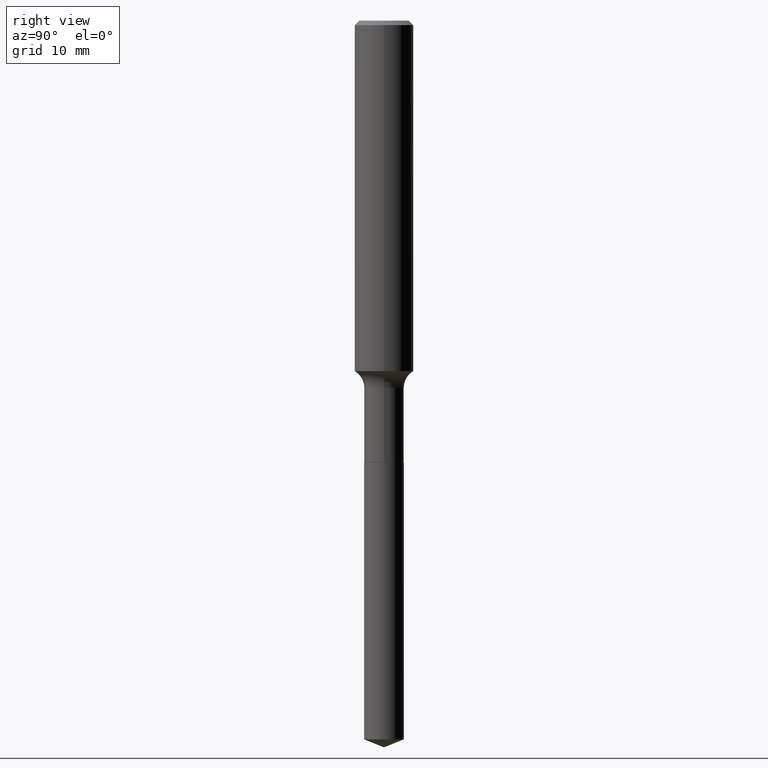
[diagram: clean part render]
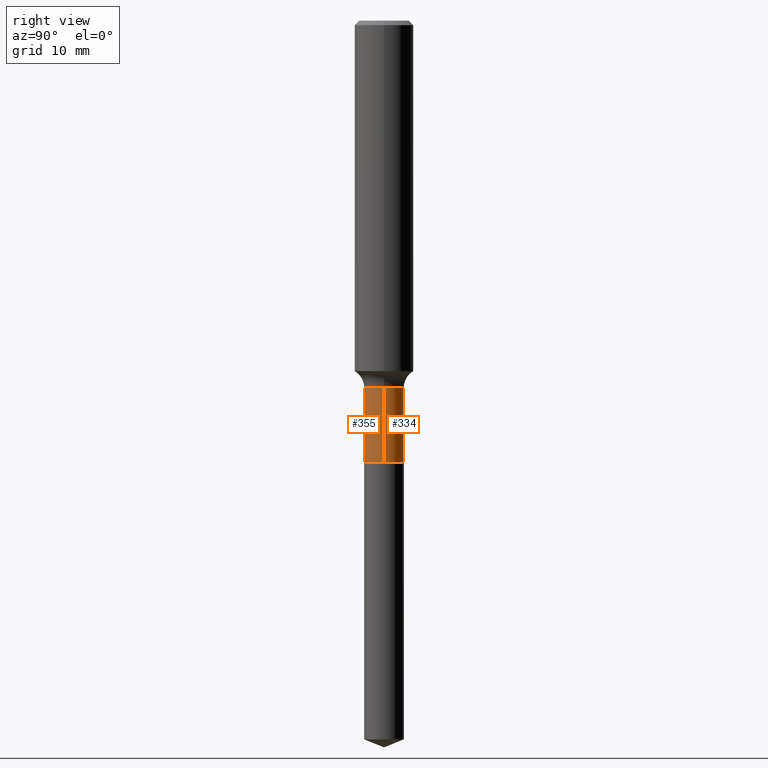
[diagram: same view with one multi-face feature highlighted, each face labeled with its STEP entity id]
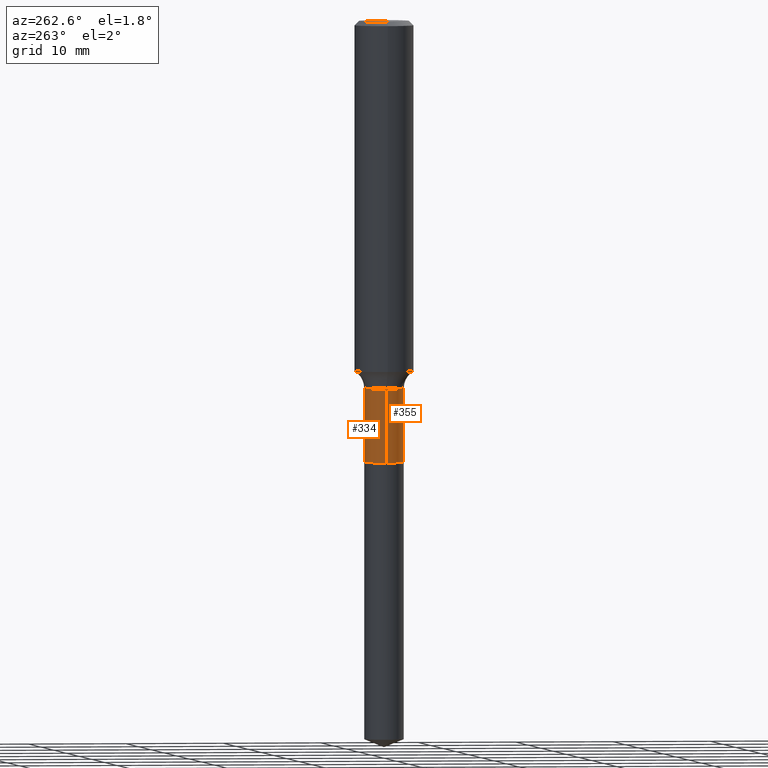
[diagram: same view with one multi-face feature highlighted, each face labeled with its STEP entity id]
A machine part, right view. The highlighted faces form ONE feature: a constant-radius fillet chain: 2 tangent blend faces with common blend radius 2.0193 mm. The faces share edges in the B-rep.
A second angle (auxiliary view) of the same feature is appended — it is thin or edge-on in the first view.
Their STEP definitions:
[1] entity #334 (Cylinder):
#2 = VECTOR ( 'NONE', #130, 39.37007874015748143 ) ;
#55 = AXIS2_PLACEMENT_3D ( 'NONE', #193, #331, #185 ) ;
#61 = CARTESIAN_POINT ( 'NONE',  ( 0.07950000000000000122, -6.737860687699500231E-15, -1.770799999999999930 ) ) ;
#63 = EDGE_LOOP ( 'NONE', ( #468, #454, #365, #387 ) ) ;
#111 = DIRECTION ( 'NONE',  ( 1.000000000000000000, -6.982962677686269866E-15, 0.000000000000000000 ) ) ;
#130 = DIRECTION ( 'NONE',  ( -2.445468806185136877E-29, 3.491481338843145188E-15, 1.000000000000000000 ) ) ;
#147 = CARTESIAN_POINT ( 'NONE',  ( 3.599974629585139129E-29, -5.139809678910993544E-15, -1.472099999999999520 ) ) ;
#148 = FACE_OUTER_BOUND ( 'NONE', #63, .T. ) ;
#153 = VECTOR ( 'NONE', #171, 39.37007874015748143 ) ;
#156 = VERTEX_POINT ( 'NONE', #336 ) ;
#163 = LINE ( 'NONE', #204, #2 ) ;
#171 = DIRECTION ( 'NONE',  ( -2.445468806185136877E-29, 3.491481338843145188E-15, 1.000000000000000000 ) ) ;
#185 = DIRECTION ( 'NONE',  ( 1.000000000000000000, -6.982962677686267499E-15, 4.876176775795935793E-29 ) ) ;
#193 = CARTESIAN_POINT ( 'NONE',  ( 0.000000000000000000, 0.000000000000000000, 0.000000000000000000 ) ) ;
#203 = EDGE_CURVE ( 'NONE', #410, #156, #208, .T. ) ;
#204 = CARTESIAN_POINT ( 'NONE',  ( 0.07949999999999998734, -5.551455328760581522E-16, 3.876560536757768171E-30 ) ) ;
#208 = LINE ( 'NONE', #359, #153 ) ;
#213 = CARTESIAN_POINT ( 'NONE',  ( 0.07949999999999995959, -5.694955211787051401E-15, -1.472099999999999520 ) ) ;
#256 = VERTEX_POINT ( 'NONE', #213 ) ;
#278 = EDGE_CURVE ( 'NONE', #256, #156, #360, .T. ) ;
#293 = AXIS2_PLACEMENT_3D ( 'NONE', #446, #428, #352 ) ;
#328 = DIRECTION ( 'NONE',  ( -2.445468806185136597E-29, 3.491481338843145583E-15, 1.000000000000000000 ) ) ;
#331 = DIRECTION ( 'NONE',  ( -2.445468806185136597E-29, 3.491481338843145583E-15, 1.000000000000000000 ) ) ;
#334 = ADVANCED_FACE ( 'NONE', ( #148 ), #393, .T. ) ;
#336 = CARTESIAN_POINT ( 'NONE',  ( -0.07949999999999995959, -5.096380941937938599E-15, -1.472099999999999520 ) ) ;
#352 = DIRECTION ( 'NONE',  ( 1.000000000000000000, -6.982962677686265922E-15, 0.000000000000000000 ) ) ;
#359 = CARTESIAN_POINT ( 'NONE',  ( -0.07949999999999998734, 5.648814749292795578E-16, -3.910553396752649427E-30 ) ) ;
#360 = CIRCLE ( 'NONE', #426, 0.07949999999999995959 ) ;
#365 = ORIENTED_EDGE ( 'NONE', *, *, #278, .F. ) ;
#375 = CARTESIAN_POINT ( 'NONE',  ( -0.07950000000000000122, -5.096380941937938599E-15, -1.770799999999999930 ) ) ;
#387 = ORIENTED_EDGE ( 'NONE', *, *, #486, .F. ) ;
#393 = CYLINDRICAL_SURFACE ( 'NONE', #55, 0.07949999999999998734 ) ;
#410 = VERTEX_POINT ( 'NONE', #375 ) ;
#414 = VERTEX_POINT ( 'NONE', #61 ) ;
#425 = CIRCLE ( 'NONE', #293, 0.07950000000000000122 ) ;
#426 = AXIS2_PLACEMENT_3D ( 'NONE', #147, #328, #111 ) ;
#428 = DIRECTION ( 'NONE',  ( -2.445468806185136597E-29, 3.491481338843145583E-15, 1.000000000000000000 ) ) ;
#446 = CARTESIAN_POINT ( 'NONE',  ( 4.330436161992639608E-29, -6.182715154823442375E-15, -1.770799999999999930 ) ) ;
#454 = ORIENTED_EDGE ( 'NONE', *, *, #203, .T. ) ;
#468 = ORIENTED_EDGE ( 'NONE', *, *, #469, .T. ) ;
#469 = EDGE_CURVE ( 'NONE', #414, #410, #425, .T. ) ;
#486 = EDGE_CURVE ( 'NONE', #414, #256, #163, .T. ) ;
[2] entity #355 (Cylinder):
#2 = VECTOR ( 'NONE', #130, 39.37007874015748143 ) ;
#3 = DIRECTION ( 'NONE',  ( -2.445468806185136597E-29, 3.491481338843145583E-15, 1.000000000000000000 ) ) ;
#57 = DIRECTION ( 'NONE',  ( -2.445468806185136597E-29, 3.491481338843145583E-15, 1.000000000000000000 ) ) ;
#61 = CARTESIAN_POINT ( 'NONE',  ( 0.07950000000000000122, -6.737860687699500231E-15, -1.770799999999999930 ) ) ;
#74 = EDGE_LOOP ( 'NONE', ( #316, #83, #458, #176 ) ) ;
#83 = ORIENTED_EDGE ( 'NONE', *, *, #490, .T. ) ;
#113 = AXIS2_PLACEMENT_3D ( 'NONE', #482, #3, #400 ) ;
#114 = FACE_OUTER_BOUND ( 'NONE', #74, .T. ) ;
#130 = DIRECTION ( 'NONE',  ( -2.445468806185136877E-29, 3.491481338843145188E-15, 1.000000000000000000 ) ) ;
#153 = VECTOR ( 'NONE', #171, 39.37007874015748143 ) ;
#156 = VERTEX_POINT ( 'NONE', #336 ) ;
#163 = LINE ( 'NONE', #204, #2 ) ;
#171 = DIRECTION ( 'NONE',  ( -2.445468806185136877E-29, 3.491481338843145188E-15, 1.000000000000000000 ) ) ;
#176 = ORIENTED_EDGE ( 'NONE', *, *, #421, .F. ) ;
#203 = EDGE_CURVE ( 'NONE', #410, #156, #208, .T. ) ;
#204 = CARTESIAN_POINT ( 'NONE',  ( 0.07949999999999998734, -5.551455328760581522E-16, 3.876560536757768171E-30 ) ) ;
#208 = LINE ( 'NONE', #359, #153 ) ;
#213 = CARTESIAN_POINT ( 'NONE',  ( 0.07949999999999995959, -5.694955211787051401E-15, -1.472099999999999520 ) ) ;
#216 = DIRECTION ( 'NONE',  ( -2.445468806185136597E-29, 3.491481338843145583E-15, 1.000000000000000000 ) ) ;
#231 = CYLINDRICAL_SURFACE ( 'NONE', #388, 0.07949999999999998734 ) ;
#256 = VERTEX_POINT ( 'NONE', #213 ) ;
#260 = CARTESIAN_POINT ( 'NONE',  ( 3.599974629585139129E-29, -5.139809678910993544E-15, -1.472099999999999520 ) ) ;
#265 = CARTESIAN_POINT ( 'NONE',  ( 0.000000000000000000, 0.000000000000000000, 0.000000000000000000 ) ) ;
#304 = DIRECTION ( 'NONE',  ( 1.000000000000000000, -6.982962677686267499E-15, 4.876176775795935793E-29 ) ) ;
#316 = ORIENTED_EDGE ( 'NONE', *, *, #203, .F. ) ;
#336 = CARTESIAN_POINT ( 'NONE',  ( -0.07949999999999995959, -5.096380941937938599E-15, -1.472099999999999520 ) ) ;
#355 = ADVANCED_FACE ( 'NONE', ( #114 ), #231, .T. ) ;
#359 = CARTESIAN_POINT ( 'NONE',  ( -0.07949999999999998734, 5.648814749292795578E-16, -3.910553396752649427E-30 ) ) ;
#363 = DIRECTION ( 'NONE',  ( 1.000000000000000000, -6.982962677686269866E-15, 0.000000000000000000 ) ) ;
#375 = CARTESIAN_POINT ( 'NONE',  ( -0.07950000000000000122, -5.096380941937938599E-15, -1.770799999999999930 ) ) ;
#388 = AXIS2_PLACEMENT_3D ( 'NONE', #265, #57, #304 ) ;
#394 = CIRCLE ( 'NONE', #113, 0.07950000000000000122 ) ;
#400 = DIRECTION ( 'NONE',  ( 1.000000000000000000, -6.982962677686265922E-15, 0.000000000000000000 ) ) ;
#410 = VERTEX_POINT ( 'NONE', #375 ) ;
#414 = VERTEX_POINT ( 'NONE', #61 ) ;
#421 = EDGE_CURVE ( 'NONE', #156, #256, #463, .T. ) ;
#427 = AXIS2_PLACEMENT_3D ( 'NONE', #260, #216, #363 ) ;
#458 = ORIENTED_EDGE ( 'NONE', *, *, #486, .T. ) ;
#463 = CIRCLE ( 'NONE', #427, 0.07949999999999995959 ) ;
#482 = CARTESIAN_POINT ( 'NONE',  ( 4.330436161992639608E-29, -6.182715154823442375E-15, -1.770799999999999930 ) ) ;
#486 = EDGE_CURVE ( 'NONE', #414, #256, #163, .T. ) ;
#490 = EDGE_CURVE ( 'NONE', #410, #414, #394, .T. ) ;